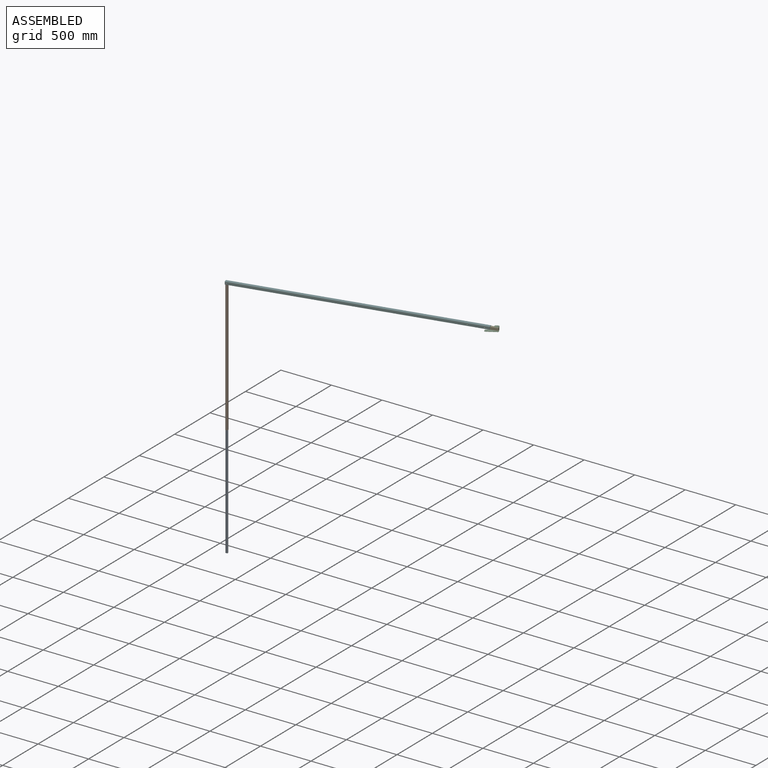
[diagram: assembled view]
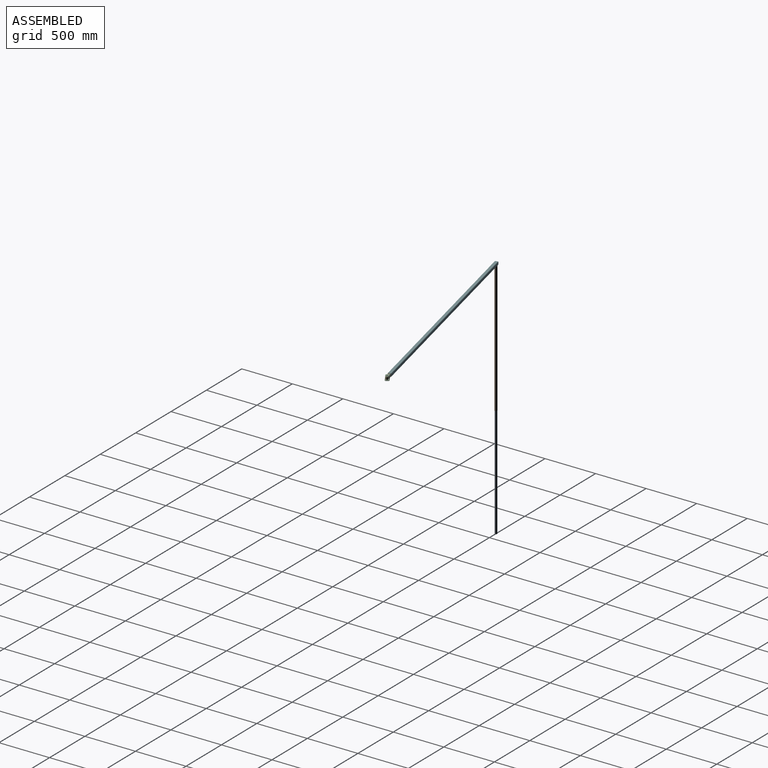
[diagram: assembled view, second angle]
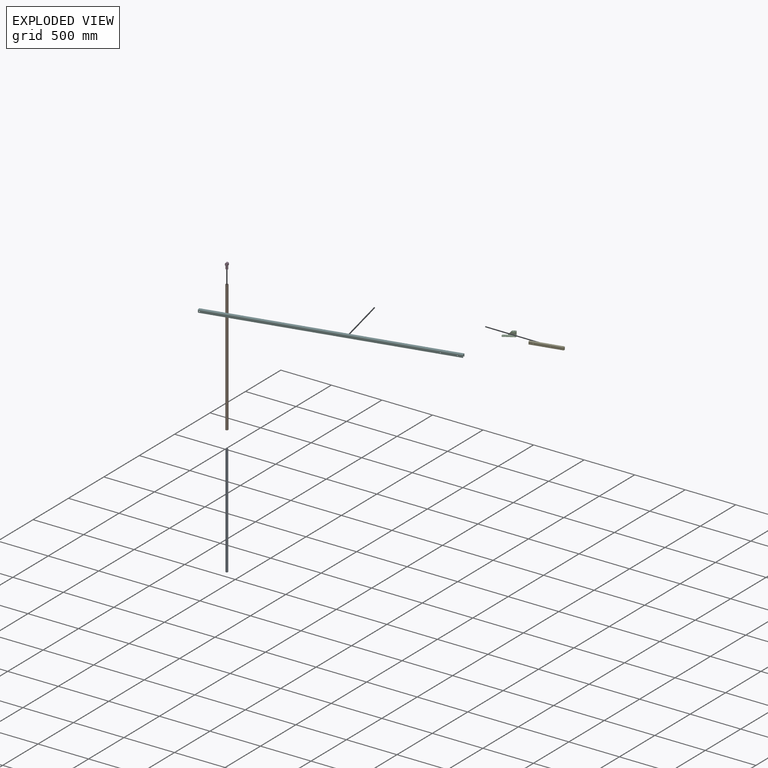
[diagram: exploded view]
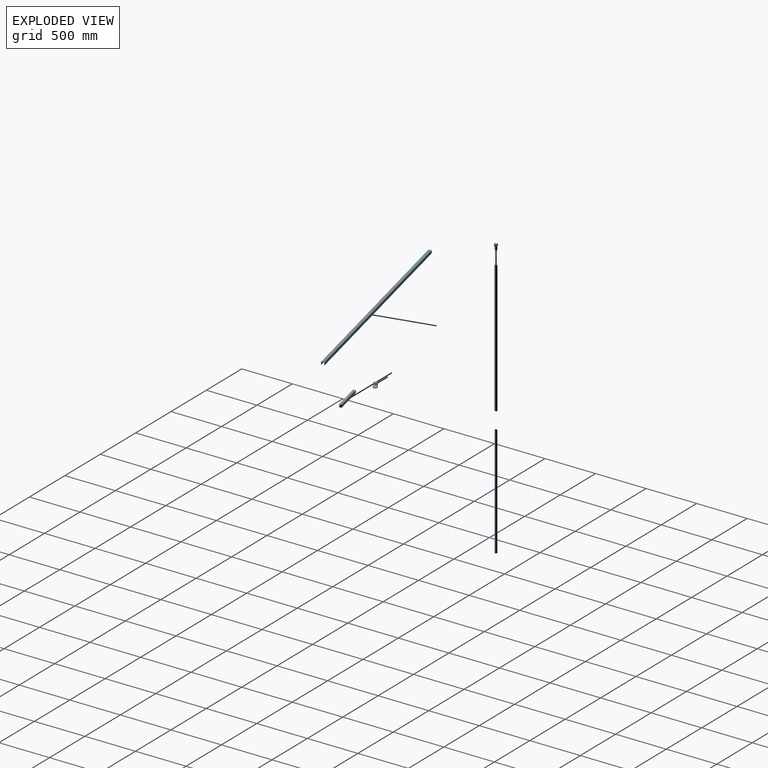
[diagram: exploded view, second angle]
ASSEMBLY  parts=6 mates=4
PART A: 4 faces, bbox 22x22x1100 mm
  f0: cylinder r=10mm len=1100mm, axis (0,0,1), area 69115mm2, adj f2,f3
  f1: cylinder r=11mm len=1100mm, axis (0,0,1), area 76026.5mm2, adj f2,f3
  f2: plane 22x22mm, normal (0,0,-1), area 66mm2, adj f0,f1
  f3: plane 22x22mm, normal (0,0,1), area 66mm2, adj f0,f1
PART B: 6 faces, bbox 25x25x1300 mm
  f0: cylinder r=11mm len=1300mm, axis (0,0,1), area 89744.6mm2, adj f2,f3,f4,f5
  f1: cylinder r=12.5mm len=1300mm, axis (0,0,1), area 101997.3mm2, adj f2,f3,f4,f5
  f2: plane 25x25mm, normal (0,0,-1), area 110.7mm2, adj f0,f1
  f3: plane 25x25mm, normal (0,0,1), area 110.7mm2, adj f0,f1
  f4: cylinder r=4.05mm len=8.1mm, axis (1,0,0), area 39.4mm2, adj f0,f1
  f5: cylinder r=4.05mm len=8.1mm, axis (1,0,0), area 39.4mm2, adj f0,f1
PART C: 34 faces, bbox 40x120x43 mm
  f0: plane 3x3mm, normal (-1,0,0), area 9mm2, adj f1,f9,f10,f30
  f1: plane 3x3mm, normal (0,1,0), area 9mm2, adj f0,f5,f9,f10
  f2: plane 24x3mm, normal (0,1,0), area 72mm2, adj f9,f10,f13,f31
  f3: plane 100x3mm, normal (1,0,0), area 300mm2, adj f9,f10,f11,f13
  f4: plane 17x3mm, normal (0,-1,0), area 51mm2, adj f9,f10,f11,f12
  f5: plane 37x3mm, normal (-1,0,0), area 111mm2, adj f1,f9,f10,f12
  f6: cylinder r=4mm len=8mm, axis (0,0,1), area 75.4mm2, adj f9,f10
  f7: cylinder r=4mm len=8mm, axis (0,0,1), area 75.4mm2, adj f9,f10
  f8: cylinder r=4mm len=8mm, axis (0,0,1), area 75.4mm2, adj f9,f10
  f9: plane 120x37mm, normal (0,0,-1), area 4005.8mm2, adj f0,f1,f2,f3,f4,f5,f6,f7
  f10: plane 120x37mm, normal (0,0,1), area 4005.8mm2, adj f0,f1,f2,f3,f4,f5,f6,f7
  f11: cylinder r=10mm len=10mm, axis (0,0,-1), area 47.1mm2, adj f3,f4,f9,f10
  f12: cylinder r=10mm len=10mm, axis (0,0,-1), area 47.1mm2, adj f4,f5,f9,f10
  f13: cylinder r=10mm len=10mm, axis (0,0,1), area 47.1mm2, adj f2,f3,f9,f10
  f14: plane 31x3mm, normal (0,1,0), area 93mm2, adj f16,f17,f27,f31
  f15: plane 31x31mm, normal (0,-0.71,0.71), area 131.5mm2, adj f16,f17,f26,f30
  f16: plane 70x31mm, normal (-1,0,0), area 1689.5mm2, adj f14,f15,f28,f32
  f17: plane 70x31mm, normal (1,0,0), area 1689.5mm2, adj f14,f15,f29,f33
  f18: plane 16x3mm, normal (1,0,0), area 48mm2, adj f22,f23,f24,f25
  f19: plane 19x3mm, normal (0,1,0), area 57mm2, adj f22,f23,f24,f27
  f20: cylinder r=4mm len=8mm, axis (0,0,1), area 75.4mm2, adj f22,f23
  f21: plane 19x3mm, normal (0,-1,0), area 57mm2, adj f22,f23,f25,f26
  f22: plane 36x29mm, normal (0,0,1), area 950.8mm2, adj f18,f19,f20,f21,f24,f25,f28
  f23: plane 36x29mm, normal (0,0,-1), area 950.8mm2, adj f18,f19,f20,f21,f24,f25,f29
  f24: cylinder r=10mm len=10mm, axis (0,0,1), area 47.1mm2, adj f18,f19,f22,f23
  f25: cylinder r=10mm len=10mm, axis (0,0,1), area 47.1mm2, adj f18,f21,f22,f23
  f26: bspline ~6x6mm, area 24.3mm2, adj f15,f21,f28,f29
  f27: plane 6x6mm, normal (0,1,0), area 21.2mm2, adj f14,f19,f28,f29
  f28: cylinder r=6mm len=39mm, axis (0,-1,0), area 346.5mm2, adj f16,f22,f26,f27
  f29: cylinder r=3mm len=39mm, axis (0,-1,0), area 173.2mm2, adj f17,f23,f26,f27
  f30: plane 6x6mm, normal (0,-1,0), area 21.2mm2, adj f0,f15,f32,f33
  f31: plane 6x6mm, normal (0,1,0), area 21.2mm2, adj f2,f14,f32,f33
  f32: cylinder r=6mm len=70mm, axis (0,-1,0), area 659.7mm2, adj f9,f16,f30,f31
  f33: cylinder r=3mm len=70mm, axis (0,-1,0), area 329.9mm2, adj f10,f17,f30,f31
PART D: 10 faces, bbox 25x25x60 mm
  f0: plane 25x12.5mm, normal (0,-1,0), area 312.5mm2, adj f1,f4,f5,f6
  f1: plane 25x25mm, normal (0,0,-1), area 244.9mm2, adj f0,f2,f5,f6,f7
  f2: plane 25x12.5mm, normal (0,1,0), area 312.5mm2, adj f1,f4,f5,f6
  f3: cylinder r=4mm len=25mm, axis (-1,0,0), area 628.3mm2, adj f5,f6
  f4: cylinder r=12.5mm len=25mm, axis (-1,0,0), area 981.7mm2, adj f0,f2,f5,f6
  f5: plane 25x25mm, normal (1,0,0), area 507.7mm2, adj f0,f1,f2,f3,f4
  f6: plane 25x25mm, normal (-1,0,0), area 507.7mm2, adj f0,f1,f2,f3,f4
  f7: cylinder r=11mm len=34mm, axis (0,0,1), area 2349.9mm2, adj f1,f9
  f8: plane 20x20mm, normal (0,0,-1), area 314.2mm2, adj f9
  f9: torus R=10mm, axis (0,0,-1), area 105mm2, adj f7,f8
PART E: 11 faces, bbox 25x310x25 mm
  f0: plane 310x25mm, normal (0,0,1), area 7656.8mm2, adj f1,f3,f4,f5,f6,f7,f8
  f1: plane 300x25mm, normal (-1,0,0), area 7399.5mm2, adj f0,f2,f4,f7,f9,f10
  f2: plane 310x25mm, normal (0,0,-1), area 7656.8mm2, adj f1,f3,f4,f5,f6,f7,f8
  f3: plane 300x25mm, normal (1,0,0), area 7399.5mm2, adj f0,f2,f4,f6,f9,f10
  f4: plane 25x25mm, normal (0,-1,0), area 625mm2, adj f0,f1,f2,f3
  f5: plane 25x5mm, normal (0,1,0), area 125mm2, adj f0,f2,f6,f7
  f6: cylinder r=10mm len=25mm, axis (0,0,1), area 392.7mm2, adj f0,f2,f3,f5
  f7: cylinder r=10mm len=25mm, axis (0,0,-1), area 392.7mm2, adj f0,f1,f2,f5
  f8: cylinder r=4mm len=25mm, axis (0,0,1), area 628.3mm2, adj f0,f2
  f9: cylinder r=4mm len=25mm, axis (1,0,0), area 628.3mm2, adj f1,f3
  f10: cylinder r=4mm len=25mm, axis (1,0,0), area 628.3mm2, adj f1,f3
PART F: 30 faces, bbox 31x2317x28 mm
  f0: plane 23x3mm, normal (0,1,0), area 69mm2, adj f2,f3,f14,f26
  f1: plane 23x3mm, normal (0,-1,0), area 69mm2, adj f2,f3,f13,f27
  f2: plane 2317x23mm, normal (0,0,-1), area 53291mm2, adj f0,f1,f16,f29
  f3: plane 2317x23mm, normal (0,0,1), area 53291mm2, adj f0,f1,f15,f28
  f4: plane 2312x3mm, normal (0,0,-1), area 6936mm2, adj f5,f10,f11,f12
  f5: plane 24x3mm, normal (0,1,0), area 72mm2, adj f4,f10,f11,f14
  f6: cylinder r=4.05mm len=8.1mm, axis (1,0,0), area 76.3mm2, adj f10,f11
  f7: cylinder r=4mm len=8mm, axis (1,0,0), area 75.4mm2, adj f10,f11
  f8: cylinder r=4mm len=8mm, axis (1,0,0), area 75.4mm2, adj f10,f11
  f9: plane 19x3mm, normal (0,-1,0), area 57mm2, adj f10,f11,f12,f13
  f10: plane 2317x24mm, normal (1,0,0), area 55450.6mm2, adj f4,f5,f6,f7,f8,f9,f12,f16
  f11: plane 2317x24mm, normal (-1,0,0), area 55450.6mm2, adj f4,f5,f6,f7,f8,f9,f12,f15
  f12: cylinder r=5mm len=5mm, axis (1,0,0), area 23.6mm2, adj f4,f9,f10,f11
  f13: plane 4x4mm, normal (0,-1,0), area 11.8mm2, adj f1,f9,f15,f16
  f14: plane 4x4mm, normal (0,1,0), area 11.8mm2, adj f0,f5,f15,f16
  f15: cylinder r=4mm len=2317mm, axis (0,-1,0), area 14558.1mm2, adj f3,f11,f13,f14
  f16: cylinder r=1mm len=2317mm, axis (0,-1,0), area 3639.5mm2, adj f2,f10,f13,f14
  f17: plane 2312x3mm, normal (0,0,-1), area 6936mm2, adj f22,f23,f24,f25
  f18: plane 19x3mm, normal (0,-1,0), area 57mm2, adj f23,f24,f25,f27
  f19: cylinder r=4.05mm len=8.1mm, axis (-1,0,0), area 76.3mm2, adj f23,f24
  f20: cylinder r=4mm len=8mm, axis (-1,0,0), area 75.4mm2, adj f23,f24
  f21: cylinder r=4mm len=8mm, axis (-1,0,0), area 75.4mm2, adj f23,f24
  f22: plane 24x3mm, normal (0,1,0), area 72mm2, adj f17,f23,f24,f26
  f23: plane 2317x24mm, normal (-1,0,0), area 55450.6mm2, adj f17,f18,f19,f20,f21,f22,f25,f29
  f24: plane 2317x24mm, normal (1,0,0), area 55450.6mm2, adj f17,f18,f19,f20,f21,f22,f25,f28
  f25: cylinder r=5mm len=5mm, axis (-1,0,0), area 23.6mm2, adj f17,f18,f23,f24
  f26: plane 4x4mm, normal (0,1,0), area 11.8mm2, adj f0,f22,f28,f29
  f27: plane 4x4mm, normal (0,-1,0), area 11.8mm2, adj f1,f18,f28,f29
  f28: cylinder r=4mm len=2317mm, axis (0,1,0), area 14558.1mm2, adj f3,f24,f26,f27
  f29: cylinder r=1mm len=2317mm, axis (0,1,0), area 3639.5mm2, adj f2,f23,f26,f27
PLACE A rot(axis=(0,0,-1),77deg) t=(-87.04,98.83,-27.5)mm
PLACE B rot(axis=(0,0,-1),77deg) t=(-87.04,98.83,-27.5)mm
PLACE C rot(axis=(0,0,-1),59deg) t=(-80.17,66.29,0)mm
PLACE D rot(axis=(0,0,-1),77deg) t=(-2283.41,-418.71,6.5)mm
PLACE E rot(axis=(0,0,-1),77deg) t=(-87,98.63,0)mm
PLACE F rot(axis=(0,0,-1),77deg) t=(-87,98.63,0)mm
MATE slider A.f0 <-> B.f0  axis (0,0,1) through (-2280.6,-430.89,-1293.5)mm
MATE revolute E.f8 <-> C.f6  axis (0,0,1) through (18.5,104,34)mm
MATE fastened D.f7 <-> B.f0  axis (0,0,-1) through (-2280.6,-430.89,6.5)mm
MATE revolute D.f3 <-> F.f6  axis (-0.22,0.97,0) through (-2277.79,-443.07,21.5)mm
